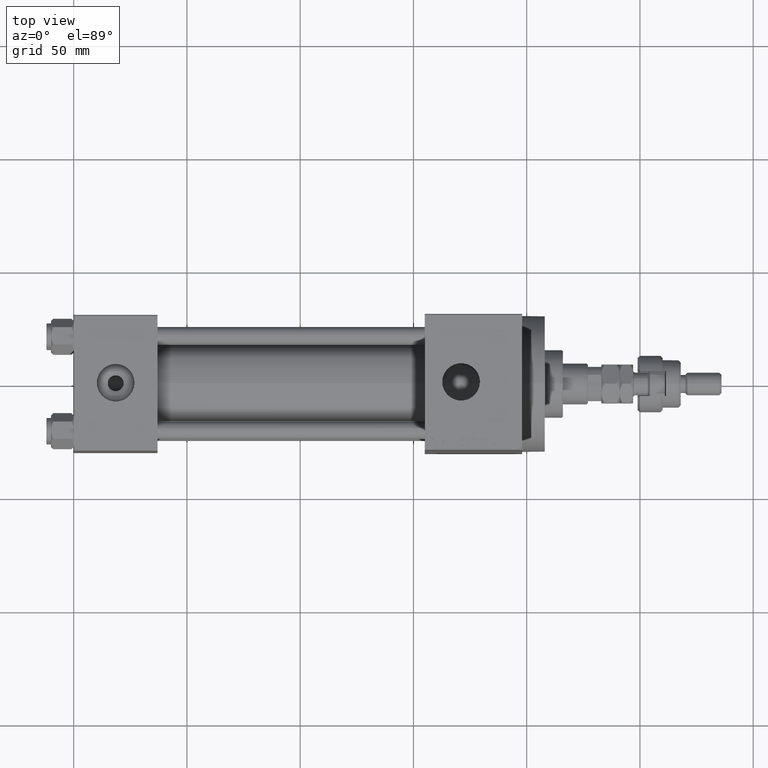
[diagram: clean part render]
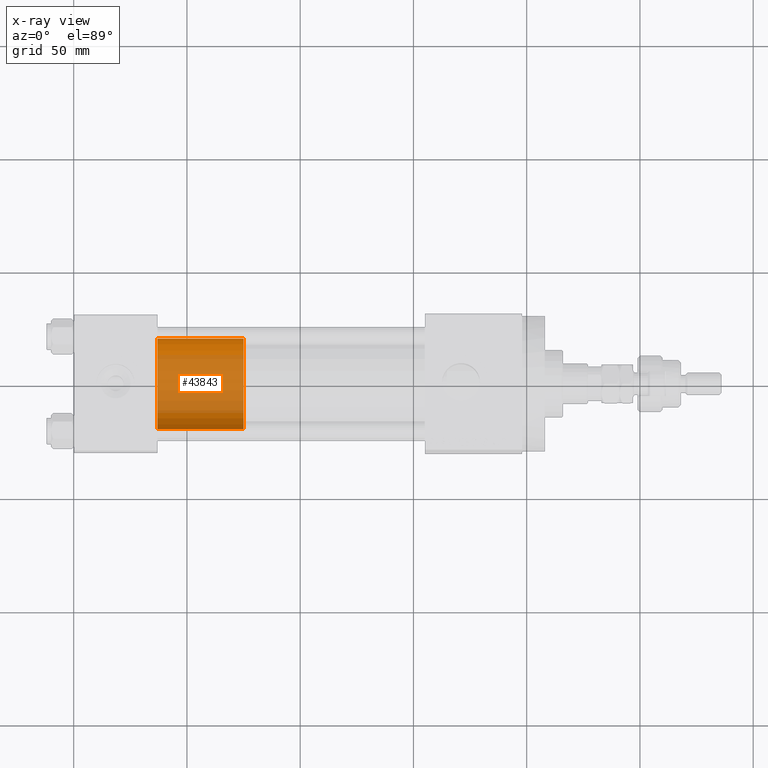
[diagram: x-ray — body ghosted, one internal face saturated and labeled with its STEP entity id]
A machine part, top view, then the same camera in x-ray: the body is ghosted and one INTERNAL B-rep face — a face not visible from any outside direction — is saturated and labeled: STEP entity #43843.
In plain terms, the highlighted cylindrical surface (partial cylindrical patch) has radius 20 mm, axis along (-1, 0, 0).
Its self-contained STEP definition (entity closure, byte-faithful):
#109 = DIRECTION ( 'NONE',  ( 0.000000000000000000, 0.000000000000000000, 1.000000000000000000 ) ) ;
#4640 = EDGE_CURVE ( 'NONE', #35955, #17371, #14914, .T. ) ;
#7265 = CARTESIAN_POINT ( 'NONE',  ( -20.00000000000000000, 0.000000000000000000, 0.000000000000000000 ) ) ;
#8772 = DIRECTION ( 'NONE',  ( -0.000000000000000000, -0.000000000000000000, -1.000000000000000000 ) ) ;
#9888 = ORIENTED_EDGE ( 'NONE', *, *, #45721, .F. ) ;
#11243 = EDGE_CURVE ( 'NONE', #26764, #42742, #17585, .T. ) ;
#14446 = DIRECTION ( 'NONE',  ( 1.000000000000000000, 0.000000000000000000, 0.000000000000000000 ) ) ;
#14914 = CIRCLE ( 'NONE', #33497, 20.00000000000000000 ) ;
#14981 = CARTESIAN_POINT ( 'NONE',  ( -20.00000000000000000, 0.000000000000000000, 38.00000000000000000 ) ) ;
#15569 = DIRECTION ( 'NONE',  ( 1.000000000000000000, 0.000000000000000000, 0.000000000000000000 ) ) ;
#17371 = VERTEX_POINT ( 'NONE', #23707 ) ;
#17585 = CIRCLE ( 'NONE', #41793, 20.00000000000000000 ) ;
#22121 = CARTESIAN_POINT ( 'NONE',  ( 20.00000000000000000, 2.449293598294706513E-15, 38.00000000000000000 ) ) ;
#22264 = DIRECTION ( 'NONE',  ( 0.000000000000000000, 0.000000000000000000, 1.000000000000000000 ) ) ;
#22997 = ORIENTED_EDGE ( 'NONE', *, *, #46257, .T. ) ;
#23557 = ORIENTED_EDGE ( 'NONE', *, *, #11243, .T. ) ;
#23707 = CARTESIAN_POINT ( 'NONE',  ( -20.00000000000000000, 0.000000000000000000, 38.00000000000000000 ) ) ;
#24205 = CARTESIAN_POINT ( 'NONE',  ( 0.000000000000000000, 0.000000000000000000, 38.00000000000000000 ) ) ;
#26764 = VERTEX_POINT ( 'NONE', #39769 ) ;
#29867 = CARTESIAN_POINT ( 'NONE',  ( 0.000000000000000000, 0.000000000000000000, 0.000000000000000000 ) ) ;
#30411 = DIRECTION ( 'NONE',  ( -0.000000000000000000, -0.000000000000000000, -1.000000000000000000 ) ) ;
#32498 = EDGE_LOOP ( 'NONE', ( #43334, #22997, #23557, #9888 ) ) ;
#33497 = AXIS2_PLACEMENT_3D ( 'NONE', #38581, #109, #15569 ) ;
#35605 = FACE_OUTER_BOUND ( 'NONE', #32498, .T. ) ;
#35955 = VERTEX_POINT ( 'NONE', #40029 ) ;
#38581 = CARTESIAN_POINT ( 'NONE',  ( 0.000000000000000000, 0.000000000000000000, 38.00000000000000000 ) ) ;
#39650 = DIRECTION ( 'NONE',  ( -1.000000000000000000, 0.000000000000000000, 0.000000000000000000 ) ) ;
#39769 = CARTESIAN_POINT ( 'NONE',  ( 20.00000000000000000, 2.449293598294706513E-15, 0.000000000000000000 ) ) ;
#40029 = CARTESIAN_POINT ( 'NONE',  ( 20.00000000000000000, 2.449293598294706513E-15, 38.00000000000000000 ) ) ;
#41793 = AXIS2_PLACEMENT_3D ( 'NONE', #29867, #22264, #14446 ) ;
#41857 = LINE ( 'NONE', #22121, #45962 ) ;
#41914 = VECTOR ( 'NONE', #30411, 1000.000000000000000 ) ;
#42682 = AXIS2_PLACEMENT_3D ( 'NONE', #24205, #8772, #39650 ) ;
#42742 = VERTEX_POINT ( 'NONE', #7265 ) ;
#43334 = ORIENTED_EDGE ( 'NONE', *, *, #4640, .F. ) ;
#43843 = ADVANCED_FACE ( 'NONE', ( #35605 ), #47231, .T. ) ;
#45721 = EDGE_CURVE ( 'NONE', #17371, #42742, #46090, .T. ) ;
#45962 = VECTOR ( 'NONE', #49952, 1000.000000000000000 ) ;
#46090 = LINE ( 'NONE', #14981, #41914 ) ;
#46257 = EDGE_CURVE ( 'NONE', #35955, #26764, #41857, .T. ) ;
#47231 = CYLINDRICAL_SURFACE ( 'NONE', #42682, 20.00000000000000000 ) ;
#49952 = DIRECTION ( 'NONE',  ( -0.000000000000000000, -0.000000000000000000, -1.000000000000000000 ) ) ;